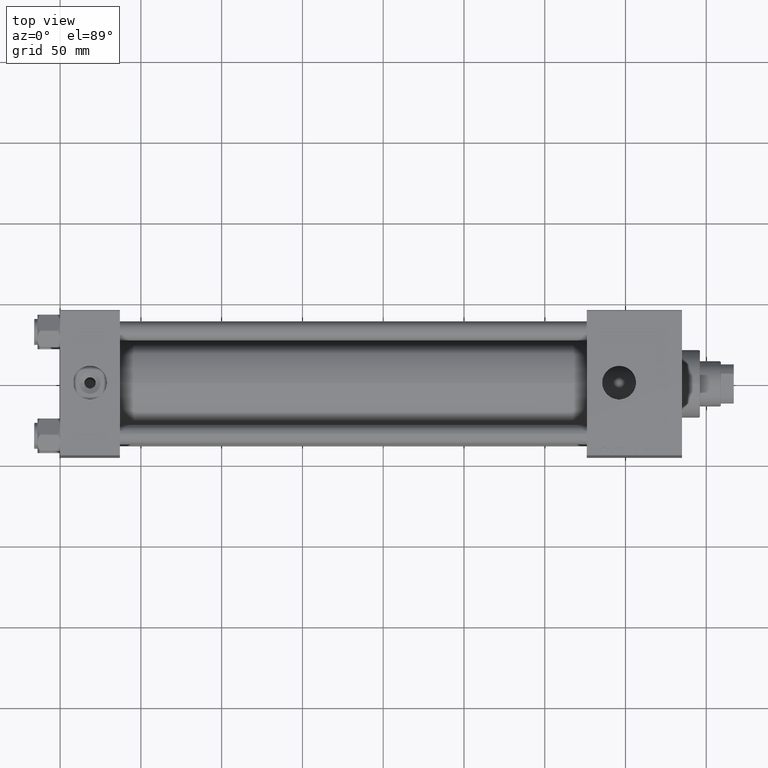
[diagram: clean part render]
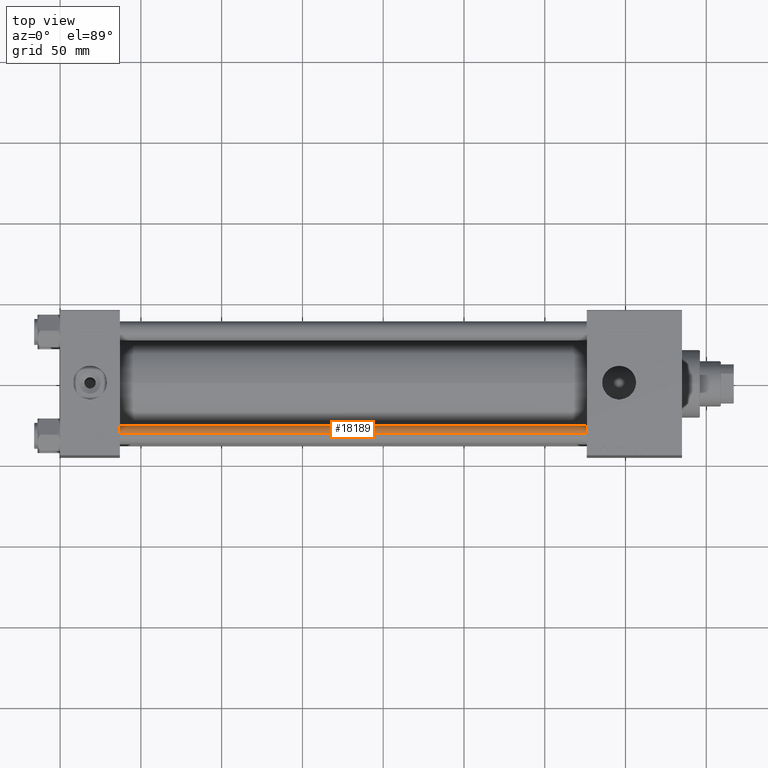
[diagram: same view with one face highlighted and labeled with its STEP entity id]
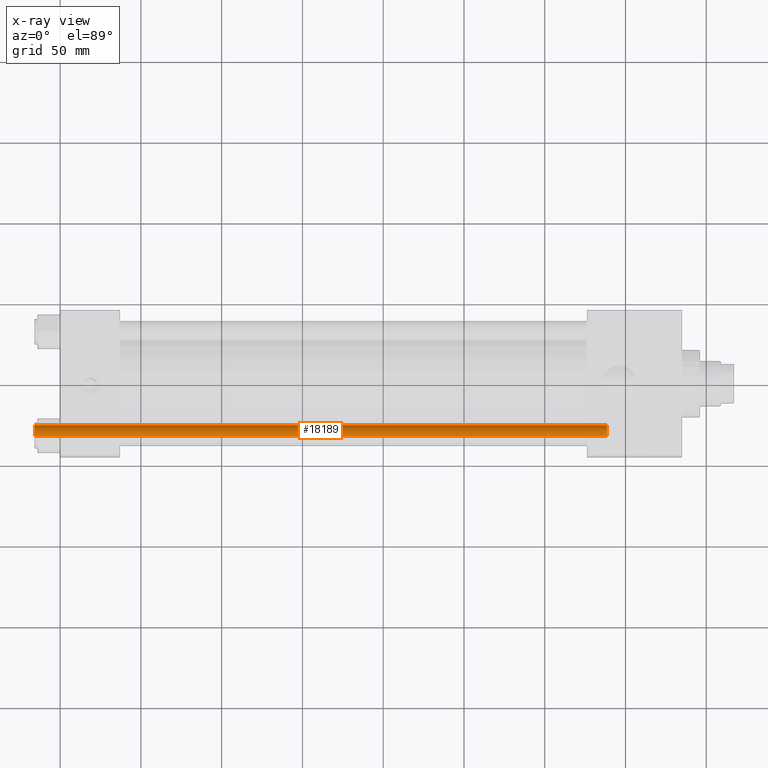
[diagram: x-ray of the same camera — body ghosted, the highlighted face saturated]
A machine part, top view. The second image highlights one B-rep face of the part: STEP entity #18189.
The next image is the same camera in x-ray: the body ghosted, the highlighted face saturated — about 0% of this face is hidden behind the body in this view.
In plain terms, the highlighted cylindrical surface (edge-blend (fillet) strip) has radius 6 mm, axis along (1, 0, -0).
Its self-contained STEP definition (entity closure, byte-faithful):
#2598 = LINE ( 'NONE', #6314, #45667 ) ;
#4818 = CARTESIAN_POINT ( 'NONE',  ( 0.000000000000000000, 0.000000000000000000, 354.5000000000000000 ) ) ;
#4833 = CARTESIAN_POINT ( 'NONE',  ( 6.000000000000000888, 7.347880794884120722E-16, 355.0000000000000000 ) ) ;
#5044 = ORIENTED_EDGE ( 'NONE', *, *, #48178, .T. ) ;
#5737 = VERTEX_POINT ( 'NONE', #32701 ) ;
#6314 = CARTESIAN_POINT ( 'NONE',  ( -6.000000000000000888, 0.000000000000000000, 355.0000000000000000 ) ) ;
#6500 = EDGE_CURVE ( 'NONE', #43347, #11705, #2598, .T. ) ;
#9669 = DIRECTION ( 'NONE',  ( 1.000000000000000000, 0.000000000000000000, 0.000000000000000000 ) ) ;
#9859 = EDGE_CURVE ( 'NONE', #25518, #5737, #45035, .T. ) ;
#10489 = ORIENTED_EDGE ( 'NONE', *, *, #46156, .T. ) ;
#10542 = DIRECTION ( 'NONE',  ( -0.000000000000000000, -0.000000000000000000, -1.000000000000000000 ) ) ;
#11705 = VERTEX_POINT ( 'NONE', #29006 ) ;
#12542 = ORIENTED_EDGE ( 'NONE', *, *, #6500, .T. ) ;
#14128 = AXIS2_PLACEMENT_3D ( 'NONE', #50647, #14934, #9669 ) ;
#14934 = DIRECTION ( 'NONE',  ( -0.000000000000000000, -0.000000000000000000, 1.000000000000000000 ) ) ;
#17905 = VECTOR ( 'NONE', #20966, 1000.000000000000000 ) ;
#18189 = ADVANCED_FACE ( 'NONE', ( #19731 ), #27943, .T. ) ;
#19731 = FACE_OUTER_BOUND ( 'NONE', #49749, .T. ) ;
#20950 = DIRECTION ( 'NONE',  ( 0.000000000000000000, 0.000000000000000000, -1.000000000000000000 ) ) ;
#20966 = DIRECTION ( 'NONE',  ( -0.000000000000000000, -0.000000000000000000, -1.000000000000000000 ) ) ;
#25454 = DIRECTION ( 'NONE',  ( 1.000000000000000000, 0.000000000000000000, 0.000000000000000000 ) ) ;
#25518 = VERTEX_POINT ( 'NONE', #40858 ) ;
#27943 = CYLINDRICAL_SURFACE ( 'NONE', #30746, 6.000000000000000888 ) ;
#28558 = AXIS2_PLACEMENT_3D ( 'NONE', #4818, #20950, #25454 ) ;
#29006 = CARTESIAN_POINT ( 'NONE',  ( -6.000000000000000888, 0.000000000000000000, 0.5000000000001114664 ) ) ;
#30746 = AXIS2_PLACEMENT_3D ( 'NONE', #39830, #43804, #36132 ) ;
#31002 = ORIENTED_EDGE ( 'NONE', *, *, #9859, .F. ) ;
#32701 = CARTESIAN_POINT ( 'NONE',  ( 6.000000000000000888, 7.347880794884120722E-16, 0.5000000000001114664 ) ) ;
#36132 = DIRECTION ( 'NONE',  ( -1.000000000000000000, 0.000000000000000000, 0.000000000000000000 ) ) ;
#36400 = CARTESIAN_POINT ( 'NONE',  ( -6.000000000000000888, 0.000000000000000000, 354.5000000000000000 ) ) ;
#37804 = CIRCLE ( 'NONE', #14128, 6.000000000000000888 ) ;
#37878 = CIRCLE ( 'NONE', #28558, 6.000000000000000888 ) ;
#39830 = CARTESIAN_POINT ( 'NONE',  ( 0.000000000000000000, 0.000000000000000000, 355.0000000000000000 ) ) ;
#40858 = CARTESIAN_POINT ( 'NONE',  ( 6.000000000000000888, 7.347880794884120722E-16, 354.5000000000000000 ) ) ;
#43347 = VERTEX_POINT ( 'NONE', #36400 ) ;
#43804 = DIRECTION ( 'NONE',  ( -0.000000000000000000, -0.000000000000000000, -1.000000000000000000 ) ) ;
#45035 = LINE ( 'NONE', #4833, #17905 ) ;
#45667 = VECTOR ( 'NONE', #10542, 1000.000000000000000 ) ;
#46156 = EDGE_CURVE ( 'NONE', #11705, #5737, #37804, .T. ) ;
#48178 = EDGE_CURVE ( 'NONE', #25518, #43347, #37878, .T. ) ;
#49749 = EDGE_LOOP ( 'NONE', ( #31002, #5044, #12542, #10489 ) ) ;
#50647 = CARTESIAN_POINT ( 'NONE',  ( 0.000000000000000000, 0.000000000000000000, 0.5000000000001114664 ) ) ;